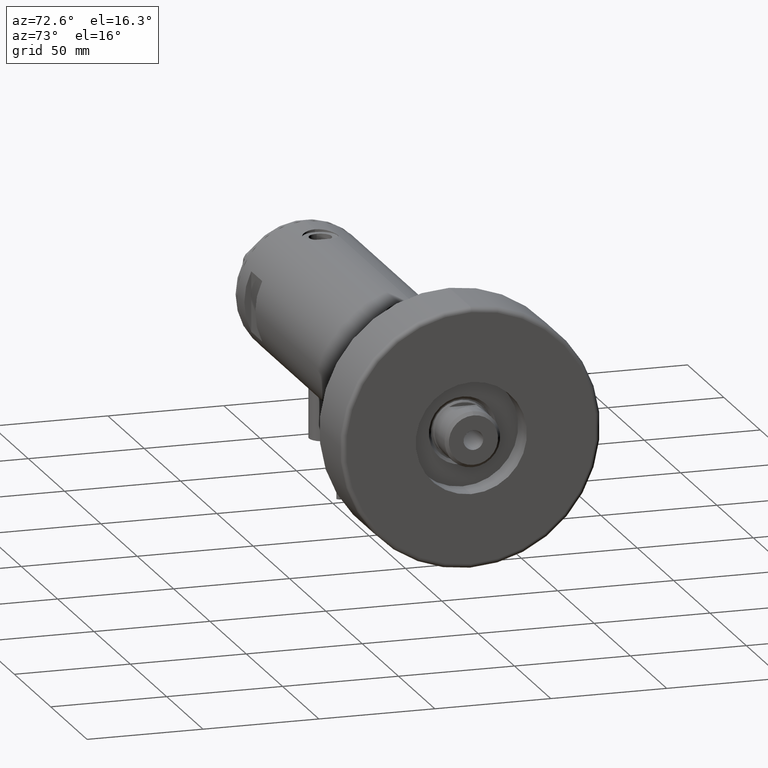
[diagram: clean part render]
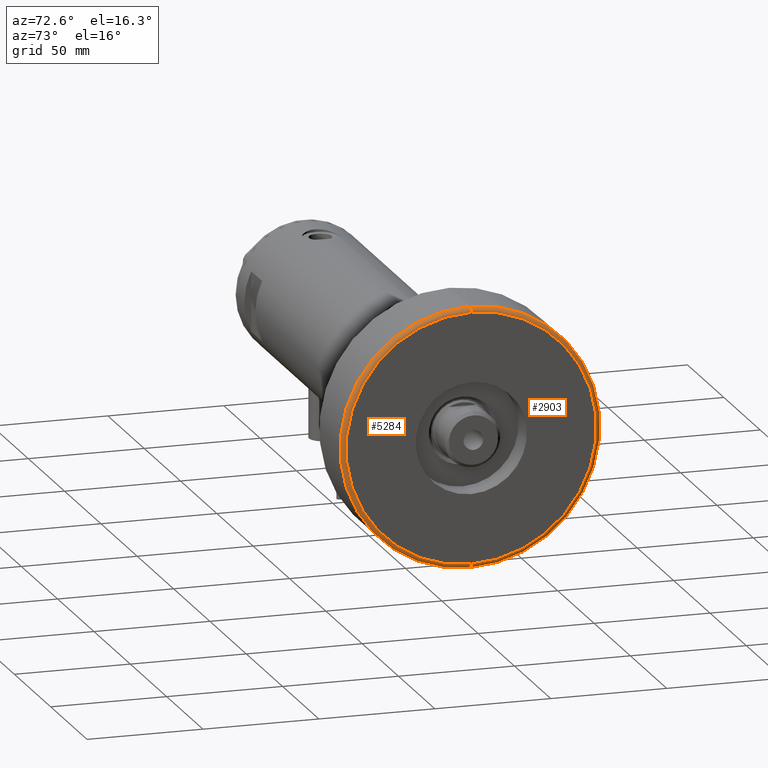
[diagram: same view with one multi-face feature highlighted, each face labeled with its STEP entity id]
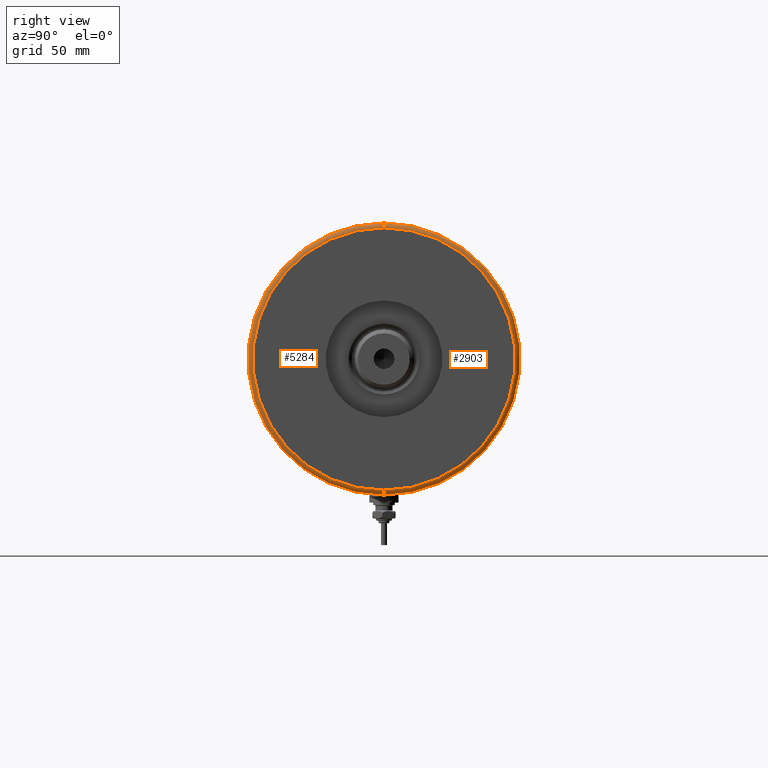
[diagram: same view with one multi-face feature highlighted, each face labeled with its STEP entity id]
A machine part, auxiliary view. The highlighted faces form ONE feature: a constant-radius fillet chain: 2 tangent blend faces with common blend radius 2 mm. The faces share edges in the B-rep.
A second angle (right view) of the same feature is appended — it is thin or edge-on in the first view.
Their STEP definitions:
[1] entity #2903 (Torus):
#128 = TOROIDAL_SURFACE ( 'NONE', #1742, 54.00000000000000000, 2.000000000000000000 ) ;
#443 = DIRECTION ( 'NONE',  ( -1.000000000000000000, 1.224646799147353454E-16, 0.000000000000000000 ) ) ;
#499 = DIRECTION ( 'NONE',  ( 0.000000000000000000, 0.000000000000000000, -1.000000000000000000 ) ) ;
#611 = AXIS2_PLACEMENT_3D ( 'NONE', #912, #1870, #499 ) ;
#912 = CARTESIAN_POINT ( 'NONE',  ( 54.00000000000000000, 0.000000000000000000, 30.00000000000000000 ) ) ;
#955 = CIRCLE ( 'NONE', #4460, 2.000000000000001776 ) ;
#1028 = CIRCLE ( 'NONE', #2142, 56.00000000000000000 ) ;
#1029 = CARTESIAN_POINT ( 'NONE',  ( 0.000000000000000000, 0.000000000000000000, 30.00000000000000000 ) ) ;
#1143 = AXIS2_PLACEMENT_3D ( 'NONE', #3413, #5785, #5749 ) ;
#1186 = FACE_OUTER_BOUND ( 'NONE', #3783, .T. ) ;
#1261 = EDGE_CURVE ( 'NONE', #2984, #3294, #1936, .T. ) ;
#1592 = DIRECTION ( 'NONE',  ( 1.000000000000000000, 0.000000000000000000, 0.000000000000000000 ) ) ;
#1742 = AXIS2_PLACEMENT_3D ( 'NONE', #1029, #3136, #3969 ) ;
#1831 = EDGE_CURVE ( 'NONE', #4623, #2984, #1028, .T. ) ;
#1870 = DIRECTION ( 'NONE',  ( 0.000000000000000000, -1.000000000000000000, 0.000000000000000000 ) ) ;
#1936 = CIRCLE ( 'NONE', #611, 2.000000000000001776 ) ;
#2142 = AXIS2_PLACEMENT_3D ( 'NONE', #2985, #4516, #1592 ) ;
#2903 = ADVANCED_FACE ( 'NONE', ( #1186 ), #128, .T. ) ;
#2984 = VERTEX_POINT ( 'NONE', #4336 ) ;
#2985 = CARTESIAN_POINT ( 'NONE',  ( 0.000000000000000000, 0.000000000000000000, 30.00000000000000000 ) ) ;
#3133 = CARTESIAN_POINT ( 'NONE',  ( 54.00000000000000000, 0.000000000000000000, 32.00000000000000000 ) ) ;
#3136 = DIRECTION ( 'NONE',  ( 0.000000000000000000, 0.000000000000000000, 1.000000000000000000 ) ) ;
#3294 = VERTEX_POINT ( 'NONE', #3133 ) ;
#3331 = CARTESIAN_POINT ( 'NONE',  ( -54.00000000000000000, 6.613092715395707467E-15, 30.00000000000000000 ) ) ;
#3413 = CARTESIAN_POINT ( 'NONE',  ( 0.000000000000000000, 0.000000000000000000, 32.00000000000000000 ) ) ;
#3783 = EDGE_LOOP ( 'NONE', ( #5675, #4746, #5019, #5168 ) ) ;
#3930 = CIRCLE ( 'NONE', #1143, 54.00000000000000000 ) ;
#3969 = DIRECTION ( 'NONE',  ( 1.000000000000000000, 0.000000000000000000, 0.000000000000000000 ) ) ;
#4112 = CARTESIAN_POINT ( 'NONE',  ( -56.00000000000000000, 0.000000000000000000, 30.00000000000000000 ) ) ;
#4336 = CARTESIAN_POINT ( 'NONE',  ( 56.00000000000000000, 6.858022075225178552E-15, 30.00000000000000000 ) ) ;
#4374 = EDGE_CURVE ( 'NONE', #3294, #5467, #3930, .T. ) ;
#4460 = AXIS2_PLACEMENT_3D ( 'NONE', #3331, #5273, #443 ) ;
#4516 = DIRECTION ( 'NONE',  ( -0.000000000000000000, -0.000000000000000000, -1.000000000000000000 ) ) ;
#4623 = VERTEX_POINT ( 'NONE', #4112 ) ;
#4746 = ORIENTED_EDGE ( 'NONE', *, *, #6247, .T. ) ;
#5019 = ORIENTED_EDGE ( 'NONE', *, *, #4374, .F. ) ;
#5168 = ORIENTED_EDGE ( 'NONE', *, *, #1261, .F. ) ;
#5273 = DIRECTION ( 'NONE',  ( 1.224646799147353207E-16, 1.000000000000000000, -0.000000000000000000 ) ) ;
#5467 = VERTEX_POINT ( 'NONE', #5892 ) ;
#5675 = ORIENTED_EDGE ( 'NONE', *, *, #1831, .F. ) ;
#5749 = DIRECTION ( 'NONE',  ( 1.000000000000000000, 0.000000000000000000, 0.000000000000000000 ) ) ;
#5785 = DIRECTION ( 'NONE',  ( 0.000000000000000000, 0.000000000000000000, 1.000000000000000000 ) ) ;
#5892 = CARTESIAN_POINT ( 'NONE',  ( -54.00000000000000000, 6.735557395310443404E-15, 32.00000000000000000 ) ) ;
#6247 = EDGE_CURVE ( 'NONE', #4623, #5467, #955, .T. ) ;
[2] entity #5284 (Torus):
#93 = EDGE_CURVE ( 'NONE', #2984, #4623, #5306, .T. ) ;
#443 = DIRECTION ( 'NONE',  ( -1.000000000000000000, 1.224646799147353454E-16, 0.000000000000000000 ) ) ;
#499 = DIRECTION ( 'NONE',  ( 0.000000000000000000, 0.000000000000000000, -1.000000000000000000 ) ) ;
#520 = EDGE_LOOP ( 'NONE', ( #5951, #4406, #3156, #3008 ) ) ;
#611 = AXIS2_PLACEMENT_3D ( 'NONE', #912, #1870, #499 ) ;
#742 = DIRECTION ( 'NONE',  ( 1.000000000000000000, 0.000000000000000000, 0.000000000000000000 ) ) ;
#838 = AXIS2_PLACEMENT_3D ( 'NONE', #5090, #3082, #742 ) ;
#912 = CARTESIAN_POINT ( 'NONE',  ( 54.00000000000000000, 0.000000000000000000, 30.00000000000000000 ) ) ;
#955 = CIRCLE ( 'NONE', #4460, 2.000000000000001776 ) ;
#1261 = EDGE_CURVE ( 'NONE', #2984, #3294, #1936, .T. ) ;
#1717 = AXIS2_PLACEMENT_3D ( 'NONE', #4786, #2843, #5676 ) ;
#1854 = AXIS2_PLACEMENT_3D ( 'NONE', #3127, #6014, #5635 ) ;
#1870 = DIRECTION ( 'NONE',  ( 0.000000000000000000, -1.000000000000000000, 0.000000000000000000 ) ) ;
#1936 = CIRCLE ( 'NONE', #611, 2.000000000000001776 ) ;
#2843 = DIRECTION ( 'NONE',  ( -0.000000000000000000, -0.000000000000000000, -1.000000000000000000 ) ) ;
#2984 = VERTEX_POINT ( 'NONE', #4336 ) ;
#3008 = ORIENTED_EDGE ( 'NONE', *, *, #5600, .F. ) ;
#3082 = DIRECTION ( 'NONE',  ( 0.000000000000000000, 0.000000000000000000, 1.000000000000000000 ) ) ;
#3093 = CIRCLE ( 'NONE', #838, 54.00000000000000000 ) ;
#3127 = CARTESIAN_POINT ( 'NONE',  ( 0.000000000000000000, 0.000000000000000000, 30.00000000000000000 ) ) ;
#3133 = CARTESIAN_POINT ( 'NONE',  ( 54.00000000000000000, 0.000000000000000000, 32.00000000000000000 ) ) ;
#3155 = FACE_OUTER_BOUND ( 'NONE', #520, .T. ) ;
#3156 = ORIENTED_EDGE ( 'NONE', *, *, #1261, .T. ) ;
#3294 = VERTEX_POINT ( 'NONE', #3133 ) ;
#3331 = CARTESIAN_POINT ( 'NONE',  ( -54.00000000000000000, 6.613092715395707467E-15, 30.00000000000000000 ) ) ;
#4112 = CARTESIAN_POINT ( 'NONE',  ( -56.00000000000000000, 0.000000000000000000, 30.00000000000000000 ) ) ;
#4336 = CARTESIAN_POINT ( 'NONE',  ( 56.00000000000000000, 6.858022075225178552E-15, 30.00000000000000000 ) ) ;
#4406 = ORIENTED_EDGE ( 'NONE', *, *, #93, .F. ) ;
#4460 = AXIS2_PLACEMENT_3D ( 'NONE', #3331, #5273, #443 ) ;
#4623 = VERTEX_POINT ( 'NONE', #4112 ) ;
#4636 = TOROIDAL_SURFACE ( 'NONE', #1854, 54.00000000000000000, 2.000000000000000000 ) ;
#4786 = CARTESIAN_POINT ( 'NONE',  ( 0.000000000000000000, 0.000000000000000000, 30.00000000000000000 ) ) ;
#5090 = CARTESIAN_POINT ( 'NONE',  ( 0.000000000000000000, 0.000000000000000000, 32.00000000000000000 ) ) ;
#5273 = DIRECTION ( 'NONE',  ( 1.224646799147353207E-16, 1.000000000000000000, -0.000000000000000000 ) ) ;
#5284 = ADVANCED_FACE ( 'NONE', ( #3155 ), #4636, .T. ) ;
#5306 = CIRCLE ( 'NONE', #1717, 56.00000000000000000 ) ;
#5467 = VERTEX_POINT ( 'NONE', #5892 ) ;
#5600 = EDGE_CURVE ( 'NONE', #5467, #3294, #3093, .T. ) ;
#5635 = DIRECTION ( 'NONE',  ( 1.000000000000000000, 0.000000000000000000, 0.000000000000000000 ) ) ;
#5676 = DIRECTION ( 'NONE',  ( 1.000000000000000000, 0.000000000000000000, 0.000000000000000000 ) ) ;
#5892 = CARTESIAN_POINT ( 'NONE',  ( -54.00000000000000000, 6.735557395310443404E-15, 32.00000000000000000 ) ) ;
#5951 = ORIENTED_EDGE ( 'NONE', *, *, #6247, .F. ) ;
#6014 = DIRECTION ( 'NONE',  ( 0.000000000000000000, 0.000000000000000000, 1.000000000000000000 ) ) ;
#6247 = EDGE_CURVE ( 'NONE', #4623, #5467, #955, .T. ) ;